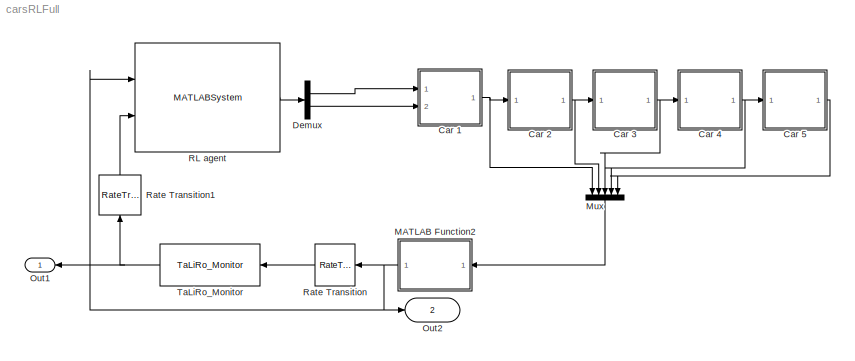
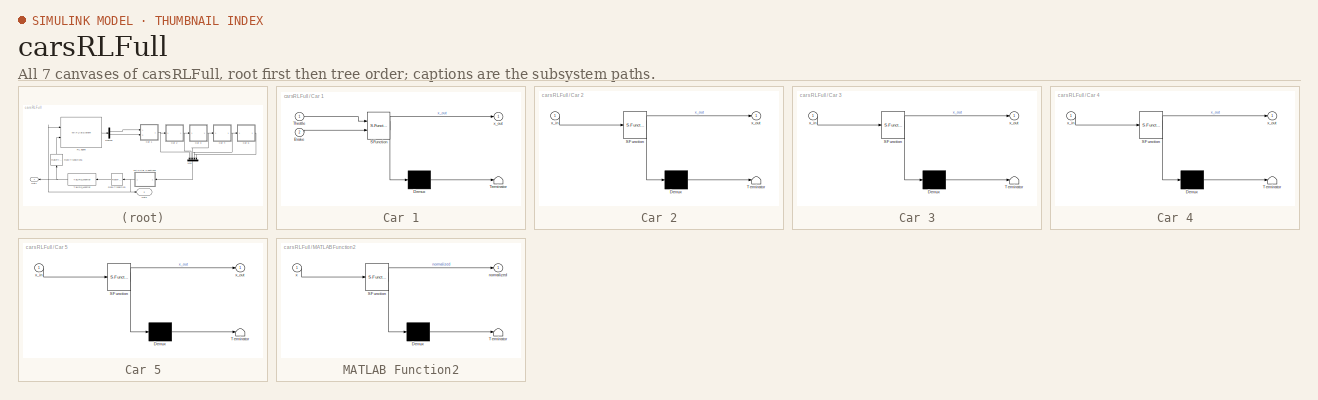
[diagram: thumbnail index - all 7 canvases of the model, root first then tree order]
MODEL carsRLFull
KIND model
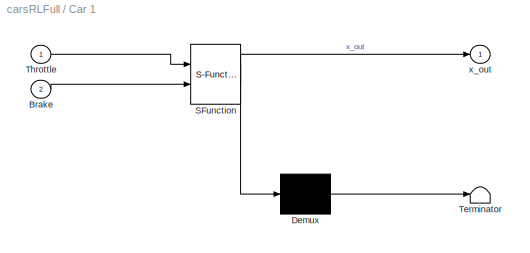
BLOCK [SubSystem] Car 1
  ErrorFcn = Stateflow.Translate.translate
  PermitHierarchicalResolution = ExplicitOnly
  Ports = [2, 1]
  RequestExecContextInheritance = off
  SFBlockType = Chart
  SID = 1
  TreatAsAtomicUnit = on
BLOCK [Demux] Car 1/ Demux 
  Outputs = 1
  Ports = [1, 1]
  SID = 1::97
BLOCK [S-Function] Car 1/ SFunction 
  EnableBusSupport = off
  FunctionName = sf_sfun
  PortCounts = [2 2]
  Ports = [2, 2]
  SFcnIsStateOwnerBlock = off
  SFunctionDeploymentMode = off
  SID = 1::96
  Tag = Stateflow S-Function carsRLFull 1
BLOCK [Terminator] Car 1/ Terminator 
  SID = 1::98
BLOCK [Inport] Car 1/Brake
  IconDisplay = Port number
  Port = 2
  SID = 1::93
BLOCK [Inport] Car 1/Throttle
  IconDisplay = Port number
  SID = 1::94
BLOCK [Outport] Car 1/x_out
  IconDisplay = Port number
  SID = 1::95
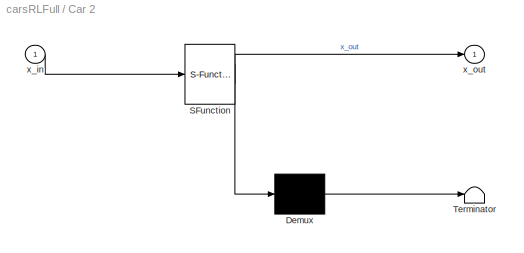
BLOCK [SubSystem] Car 2
  ErrorFcn = Stateflow.Translate.translate
  PermitHierarchicalResolution = ExplicitOnly
  Ports = [1, 1]
  RequestExecContextInheritance = off
  SFBlockType = Chart
  SID = 2
  TreatAsAtomicUnit = on
BLOCK [Demux] Car 2/ Demux 
  Outputs = 1
  Ports = [1, 1]
  SID = 2::104
BLOCK [S-Function] Car 2/ SFunction 
  EnableBusSupport = off
  FunctionName = sf_sfun
  PortCounts = [1 2]
  Ports = [1, 2]
  SFcnIsStateOwnerBlock = off
  SFunctionDeploymentMode = off
  SID = 2::103
  Tag = Stateflow S-Function carsRLFull 3
BLOCK [Terminator] Car 2/ Terminator 
  SID = 2::105
BLOCK [Inport] Car 2/x_in
  IconDisplay = Port number
  SID = 2::102
BLOCK [Outport] Car 2/x_out
  IconDisplay = Port number
  SID = 2::90
BLOCK [SubSystem] Car 3
  ErrorFcn = Stateflow.Translate.translate
  PermitHierarchicalResolution = ExplicitOnly
  Ports = [1, 1]
  RequestExecContextInheritance = off
  SFBlockType = Chart
  SID = 3
  TreatAsAtomicUnit = on
BLOCK [Demux] Car 3/ Demux 
  Outputs = 1
  Ports = [1, 1]
  SID = 3::104
BLOCK [S-Function] Car 3/ SFunction 
  EnableBusSupport = off
  FunctionName = sf_sfun
  PortCounts = [1 2]
  Ports = [1, 2]
  SFcnIsStateOwnerBlock = off
  SFunctionDeploymentMode = off
  SID = 3::103
  Tag = Stateflow S-Function carsRLFull 2
BLOCK [Terminator] Car 3/ Terminator 
  SID = 3::105
BLOCK [Inport] Car 3/x_in
  IconDisplay = Port number
  SID = 3::102
BLOCK [Outport] Car 3/x_out
  IconDisplay = Port number
  SID = 3::90
BLOCK [SubSystem] Car 4
  ErrorFcn = Stateflow.Translate.translate
  PermitHierarchicalResolution = ExplicitOnly
  Ports = [1, 1]
  RequestExecContextInheritance = off
  SFBlockType = Chart
  SID = 4
  TreatAsAtomicUnit = on
BLOCK [Demux] Car 4/ Demux 
  Outputs = 1
  Ports = [1, 1]
  SID = 4::104
BLOCK [S-Function] Car 4/ SFunction 
  EnableBusSupport = off
  FunctionName = sf_sfun
  PortCounts = [1 2]
  Ports = [1, 2]
  SFcnIsStateOwnerBlock = off
  SFunctionDeploymentMode = off
  SID = 4::103
  Tag = Stateflow S-Function carsRLFull 4
BLOCK [Terminator] Car 4/ Terminator 
  SID = 4::105
BLOCK [Inport] Car 4/x_in
  IconDisplay = Port number
  SID = 4::102
BLOCK [Outport] Car 4/x_out
  IconDisplay = Port number
  SID = 4::90
BLOCK [SubSystem] Car 5
  ErrorFcn = Stateflow.Translate.translate
  PermitHierarchicalResolution = ExplicitOnly
  Ports = [1, 1]
  RequestExecContextInheritance = off
  SFBlockType = Chart
  SID = 5
  TreatAsAtomicUnit = on
BLOCK [Demux] Car 5/ Demux 
  Outputs = 1
  Ports = [1, 1]
  SID = 5::105
BLOCK [S-Function] Car 5/ SFunction 
  EnableBusSupport = off
  FunctionName = sf_sfun
  PortCounts = [1 2]
  Ports = [1, 2]
  SFcnIsStateOwnerBlock = off
  SFunctionDeploymentMode = off
  SID = 5::104
  Tag = Stateflow S-Function carsRLFull 5
BLOCK [Terminator] Car 5/ Terminator 
  SID = 5::106
BLOCK [Inport] Car 5/x_in
  IconDisplay = Port number
  SID = 5::102
BLOCK [Outport] Car 5/x_out
  IconDisplay = Port number
  SID = 5::90
BLOCK [Demux] Demux
  DisplayOption = bar
  Outputs = 2
  Ports = [1, 2]
  SID = 6
BLOCK [SubSystem] MATLAB Function2
  ErrorFcn = Stateflow.Translate.translate
  PermitHierarchicalResolution = ExplicitOnly
  Ports = [1, 1]
  RequestExecContextInheritance = off
  SFBlockType = MATLAB Function
  SID = 7
  TreatAsAtomicUnit = on
BLOCK [Demux] MATLAB Function2/ Demux 
  Outputs = 1
  Ports = [1, 1]
  SID = 7::24
BLOCK [S-Function] MATLAB Function2/ SFunction 
  EnableBusSupport = off
  FunctionName = sf_sfun
  PortCounts = [1 2]
  Ports = [1, 2]
  SFcnIsStateOwnerBlock = off
  SFunctionDeploymentMode = off
  SID = 7::23
  Tag = Stateflow S-Function carsRLFull 6
BLOCK [Terminator] MATLAB Function2/ Terminator 
  SID = 7::25
BLOCK [Outport] MATLAB Function2/normalized
  IconDisplay = Port number
  SID = 7::5
BLOCK [Inport] MATLAB Function2/x
  IconDisplay = Port number
  SID = 7::1
BLOCK [Mux] Mux
  DisplayOption = bar
  Inputs = 5
  Ports = [5, 1]
  SID = 8
BLOCK [Outport] Out1
  IconDisplay = Port number
  SID = 13
BLOCK [Outport] Out2
  IconDisplay = Port number
  Port = 2
  SID = 14
BLOCK [MATLABSystem] RL agent
  MaskDisplay = disp('rl_agent_cars');\nport_label('input',1,'state');\nport_label('input',2,'reward');\nport_label('output',1,'action');\n
  MaskType = rl_agent_cars
  Ports = [2, 1]
  SID = 9
  SimulateUsing = Code generation
  System = rl_agent_cars
  input_range = [0 1;0 1]
  sample_time = 5
BLOCK [RateTransition] Rate Transition
  OutPortSampleTime = 0.1
  SID = 10
BLOCK [RateTransition] Rate Transition1
  SID = 11
BLOCK [Reference] TaLiRo_Monitor  REF=S_TaLiRo/TaLiRo_Monitor
  MultiThreadCoSim = auto
  Ports = [1, 1]
  SFunctionModules = ''
  SID = 12
  SourceBlock = S_TaLiRo/TaLiRo_Monitor
  SourceProductName = S-TaLiRo
LINE Car 1/ Demux :1 -> Car 1/ Terminator :1
LINE Car 1/ SFunction :1 -> Car 1/ Demux :1
LINE Car 1/ SFunction :2 -> Car 1/x_out:1
LINE Car 1/Brake:1 -> Car 1/ SFunction :2
LINE Car 1/Throttle:1 -> Car 1/ SFunction :1
NET Car 1:1 -> Car 2:1, Mux:1
LINE Car 2/ Demux :1 -> Car 2/ Terminator :1
LINE Car 2/ SFunction :1 -> Car 2/ Demux :1
LINE Car 2/ SFunction :2 -> Car 2/x_out:1
LINE Car 2/x_in:1 -> Car 2/ SFunction :1
NET Car 2:1 -> Car 3:1, Mux:2
LINE Car 3/ Demux :1 -> Car 3/ Terminator :1
LINE Car 3/ SFunction :1 -> Car 3/ Demux :1
LINE Car 3/ SFunction :2 -> Car 3/x_out:1
LINE Car 3/x_in:1 -> Car 3/ SFunction :1
NET Car 3:1 -> Car 4:1, Mux:3
LINE Car 4/ Demux :1 -> Car 4/ Terminator :1
LINE Car 4/ SFunction :1 -> Car 4/ Demux :1
LINE Car 4/ SFunction :2 -> Car 4/x_out:1
LINE Car 4/x_in:1 -> Car 4/ SFunction :1
NET Car 4:1 -> Car 5:1, Mux:4
LINE Car 5/ Demux :1 -> Car 5/ Terminator :1
LINE Car 5/ SFunction :1 -> Car 5/ Demux :1
LINE Car 5/ SFunction :2 -> Car 5/x_out:1
LINE Car 5/x_in:1 -> Car 5/ SFunction :1
LINE Car 5:1 -> Mux:5
LINE Demux:1 -> Car 1:1
LINE Demux:2 -> Car 1:2
LINE MATLAB Function2/ Demux :1 -> MATLAB Function2/ Terminator :1
LINE MATLAB Function2/ SFunction :1 -> MATLAB Function2/ Demux :1
LINE MATLAB Function2/ SFunction :2 -> MATLAB Function2/normalized:1
LINE MATLAB Function2/x:1 -> MATLAB Function2/ SFunction :1
NET MATLAB Function2:1 -> Out2:1, RL agent:1, Rate Transition:1
LINE Mux:1 -> MATLAB Function2:1
LINE RL agent:1 -> Demux:1
LINE Rate Transition1:1 -> RL agent:2
LINE Rate Transition:1 -> TaLiRo_Monitor:1
NET TaLiRo_Monitor:1 -> Out1:1, Rate Transition1:1
note: NET lines group one-source signal fan-out (src -> all destinations, sorted); 1:1 wires keep LINE
CHART Car 1 states=1 transitions=1
  STATE_LABEL 'Run\\nduring:\\nv_dot = - Throttle - Brake * v;\\nx_dot = v;\\nx_out = x;\\n'
CHART Car 3 states=3 transitions=5
  STATE_LABEL 'Chasing\\nduring:\\nv_dot = 1;\\nx_dot = -v;\\nx_out = x;'
  STATE_LABEL 'Keeping \\nduring:\\nx_dot = v;\\nx_out = x;\\n'
  STATE_LABEL 'Braking\\nduring:\\nv_dot = -v;\\nx_dot = -v;\\nx_out = x;'
CHART Car 2 states=3 transitions=5
  STATE_LABEL 'Chasing\\nduring:\\nv_dot = 1;\\nx_dot = -v;\\nx_out = x;'
  STATE_LABEL 'Keeping \\nduring:\\nx_dot = v;\\nx_out = x;\\n'
  STATE_LABEL 'Braking\\nduring:\\nv_dot = -v;\\nx_dot = -v;\\nx_out = x;'
CHART Car 4 states=3 transitions=5
  STATE_LABEL 'Chasing\\nduring:\\nv_dot = 1;\\nx_dot = -v;\\nx_out = x;'
  STATE_LABEL 'Keeping \\nduring:\\nx_dot = v;\\nx_out = x;\\n'
  STATE_LABEL 'Braking\\nduring:\\nv_dot = -v;\\nx_dot = -v;\\nx_out = x;'
CHART Car 5 states=3 transitions=5
  STATE_LABEL 'Chasing\\nduring:\\nv_dot = 1;\\nx_dot = -v;\\nx_out = x;'
  STATE_LABEL 'Keeping \\nduring:\\nx_dot = v;\\nx_out = x;\\n'
  STATE_LABEL 'Braking\\nduring:\\nv_dot = -v;\\nx_dot = -v;\\nx_out = x;'
CHART MATLAB Function2 states=1 transitions=1
  STATE_LABEL 'eML_blk_kernel()'
